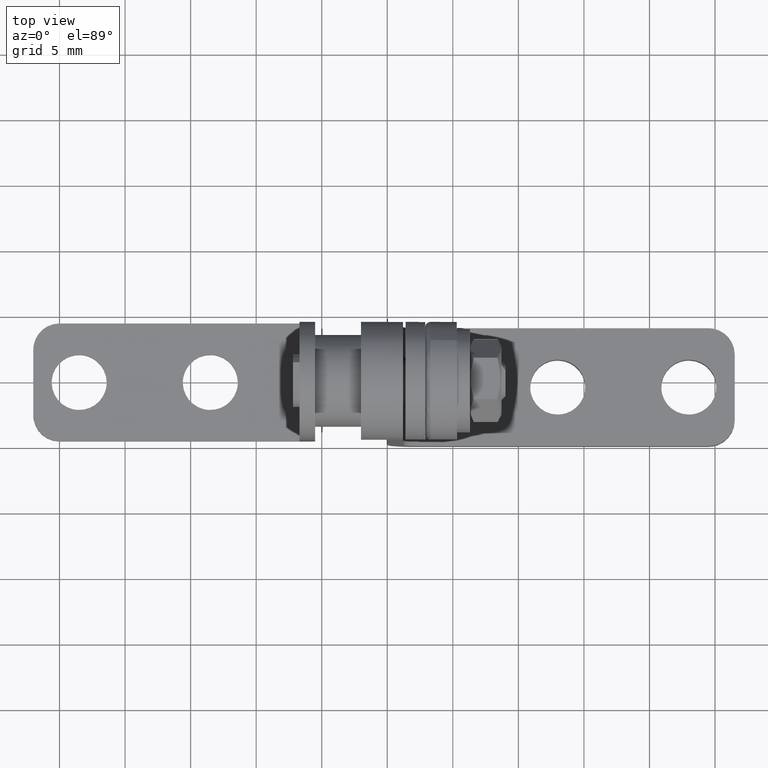
[diagram: clean part render]
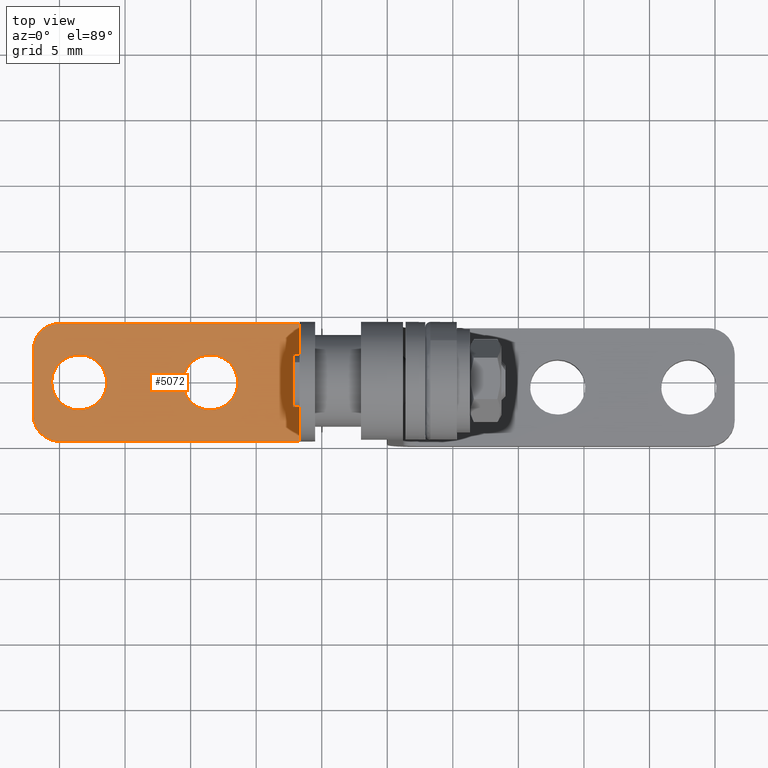
[diagram: same view with one face highlighted and labeled with its STEP entity id]
A machine part, top view. The second image highlights one B-rep face of the part: STEP entity #5072.
In plain terms, the highlighted face is a freeform B-spline surface patch.
Its self-contained STEP definition (entity closure, byte-faithful):
#4265=CARTESIAN_POINT('',(-23.628201933141490,-2.096083076695368,-6.799999999988930));
#4266=VERTEX_POINT('',#4265);
#4267=CARTESIAN_POINT('',(-21.399999999999999,-1.668354E-011,-6.799999999988930));
#4268=VERTEX_POINT('',#4267);
#4269=CARTESIAN_POINT('',(-23.628201933141487,-2.096083076695370,-6.799999999988931));
#4270=CARTESIAN_POINT('',(-23.564160802986347,-2.100000000016684,-6.799999999988931));
#4271=CARTESIAN_POINT('',(-23.500000000000000,-2.100000000016684,-6.799999999988930));
#4272=CARTESIAN_POINT('',(-21.400000000000002,-2.100000000016684,-6.799999999988931));
#4273=CARTESIAN_POINT('',(-21.399999999999999,-1.668354E-011,-6.799999999988930));
#4281=(BOUNDED_CURVE()B_SPLINE_CURVE(2,(#4269,#4270,#4271,#4272,#4273),.UNSPECIFIED.,.F.,.U.)B_SPLINE_CURVE_WITH_KNOTS((3,2,3),(0.239332962232231,0.250000000000000,0.500000000000000),.UNSPECIFIED.)CURVE()GEOMETRIC_REPRESENTATION_ITEM()RATIONAL_B_SPLINE_CURVE((0.976072041652333,0.987502787891974,1.0,0.707106781186548,1.0))REPRESENTATION_ITEM(''));
#4282=EDGE_CURVE('',#4266,#4268,#4281,.T.);
#4284=CARTESIAN_POINT('',(-23.371798066858510,2.096083076662002,-6.799999999988930));
#4285=VERTEX_POINT('',#4284);
#4286=CARTESIAN_POINT('',(-21.399999999999999,-1.668354E-011,-6.799999999988930));
#4287=CARTESIAN_POINT('',(-21.399999999999999,1.975482740373582,-6.799999999988931));
#4288=CARTESIAN_POINT('',(-23.371798066858506,2.096083076662002,-6.799999999988930));
#4296=(BOUNDED_CURVE()B_SPLINE_CURVE(2,(#4286,#4287,#4288),.UNSPECIFIED.,.F.,.U.)B_SPLINE_CURVE_WITH_KNOTS((3,3),(0.500000000000000,0.739332962232231),.UNSPECIFIED.)CURVE()GEOMETRIC_REPRESENTATION_ITEM()RATIONAL_B_SPLINE_CURVE((1.0,0.719603993294574,0.976072041652332))REPRESENTATION_ITEM(''));
#4297=EDGE_CURVE('',#4268,#4285,#4296,.T.);
#4364=CARTESIAN_POINT('',(-25.600000000000001,-1.668354E-011,-6.799999999988930));
#4365=VERTEX_POINT('',#4364);
#4366=CARTESIAN_POINT('',(-25.600000000000001,-1.668354E-011,-6.799999999988930));
#4367=CARTESIAN_POINT('',(-25.600000000000001,-1.975482740406947,-6.799999999988931));
#4368=CARTESIAN_POINT('',(-23.628201933141494,-2.096083076695369,-6.799999999988930));
#4376=(BOUNDED_CURVE()B_SPLINE_CURVE(2,(#4366,#4367,#4368),.UNSPECIFIED.,.F.,.U.)B_SPLINE_CURVE_WITH_KNOTS((3,3),(0.0,0.239332962232231),.UNSPECIFIED.)CURVE()GEOMETRIC_REPRESENTATION_ITEM()RATIONAL_B_SPLINE_CURVE((1.0,0.719603993294574,0.976072041652332))REPRESENTATION_ITEM(''));
#4377=EDGE_CURVE('',#4365,#4266,#4376,.T.);
#4411=CARTESIAN_POINT('',(-23.371798066858513,2.096083076662002,-6.799999999988931));
#4412=CARTESIAN_POINT('',(-23.435839197013657,2.099999999983317,-6.799999999988930));
#4413=CARTESIAN_POINT('',(-23.500000000000000,2.099999999983316,-6.799999999988930));
#4414=CARTESIAN_POINT('',(-25.600000000000001,2.099999999983317,-6.799999999988931));
#4415=CARTESIAN_POINT('',(-25.600000000000001,-1.668354E-011,-6.799999999988930));
#4423=(BOUNDED_CURVE()B_SPLINE_CURVE(2,(#4411,#4412,#4413,#4414,#4415),.UNSPECIFIED.,.F.,.U.)B_SPLINE_CURVE_WITH_KNOTS((3,2,3),(0.739332962232231,0.750000000000000,1.0),.UNSPECIFIED.)CURVE()GEOMETRIC_REPRESENTATION_ITEM()RATIONAL_B_SPLINE_CURVE((0.976072041652333,0.987502787891974,1.0,0.707106781186548,1.0))REPRESENTATION_ITEM(''));
#4424=EDGE_CURVE('',#4285,#4365,#4423,.T.);
#4447=CARTESIAN_POINT('',(-13.628201933141350,-2.096083076695369,-6.799999999988930));
#4448=VERTEX_POINT('',#4447);
#4449=CARTESIAN_POINT('',(-11.399999999999860,-1.668354E-011,-6.799999999988930));
#4450=VERTEX_POINT('',#4449);
#4451=CARTESIAN_POINT('',(-13.628201933141355,-2.096083076695370,-6.799999999988931));
#4452=CARTESIAN_POINT('',(-13.564160802986214,-2.100000000016684,-6.799999999988931));
#4453=CARTESIAN_POINT('',(-13.499999999999860,-2.100000000016684,-6.799999999988930));
#4454=CARTESIAN_POINT('',(-11.399999999999864,-2.100000000016684,-6.799999999988931));
#4455=CARTESIAN_POINT('',(-11.399999999999860,-1.668354E-011,-6.799999999988930));
#4463=(BOUNDED_CURVE()B_SPLINE_CURVE(2,(#4451,#4452,#4453,#4454,#4455),.UNSPECIFIED.,.F.,.U.)B_SPLINE_CURVE_WITH_KNOTS((3,2,3),(0.239332962232231,0.250000000000000,0.500000000000000),.UNSPECIFIED.)CURVE()GEOMETRIC_REPRESENTATION_ITEM()RATIONAL_B_SPLINE_CURVE((0.976072041652333,0.987502787891974,1.0,0.707106781186548,1.0))REPRESENTATION_ITEM(''));
#4464=EDGE_CURVE('',#4448,#4450,#4463,.T.);
#4466=CARTESIAN_POINT('',(-13.371798066858370,2.096083076662001,-6.799999999988930));
#4467=VERTEX_POINT('',#4466);
#4468=CARTESIAN_POINT('',(-11.399999999999860,-1.668354E-011,-6.799999999988930));
#4469=CARTESIAN_POINT('',(-11.399999999999862,1.975482740373582,-6.799999999988931));
#4470=CARTESIAN_POINT('',(-13.371798066858370,2.096083076662002,-6.799999999988930));
#4478=(BOUNDED_CURVE()B_SPLINE_CURVE(2,(#4468,#4469,#4470),.UNSPECIFIED.,.F.,.U.)B_SPLINE_CURVE_WITH_KNOTS((3,3),(0.500000000000000,0.739332962232231),.UNSPECIFIED.)CURVE()GEOMETRIC_REPRESENTATION_ITEM()RATIONAL_B_SPLINE_CURVE((1.0,0.719603993294574,0.976072041652332))REPRESENTATION_ITEM(''));
#4479=EDGE_CURVE('',#4450,#4467,#4478,.T.);
#4546=CARTESIAN_POINT('',(-15.599999999999859,-1.668354E-011,-6.799999999988930));
#4547=VERTEX_POINT('',#4546);
#4548=CARTESIAN_POINT('',(-15.599999999999859,-1.668354E-011,-6.799999999988930));
#4549=CARTESIAN_POINT('',(-15.599999999999859,-1.975482740406951,-6.799999999988930));
#4550=CARTESIAN_POINT('',(-13.628201933141346,-2.096083076695370,-6.799999999988930));
#4558=(BOUNDED_CURVE()B_SPLINE_CURVE(2,(#4548,#4549,#4550),.UNSPECIFIED.,.F.,.U.)B_SPLINE_CURVE_WITH_KNOTS((3,3),(0.0,0.239332962232231),.UNSPECIFIED.)CURVE()GEOMETRIC_REPRESENTATION_ITEM()RATIONAL_B_SPLINE_CURVE((1.0,0.719603993294574,0.976072041652333))REPRESENTATION_ITEM(''));
#4559=EDGE_CURVE('',#4547,#4448,#4558,.T.);
#4593=CARTESIAN_POINT('',(-13.371798066858370,2.096083076662002,-6.799999999988930));
#4594=CARTESIAN_POINT('',(-13.435839197013513,2.099999999983316,-6.799999999988930));
#4595=CARTESIAN_POINT('',(-13.499999999999860,2.099999999983316,-6.799999999988930));
#4596=CARTESIAN_POINT('',(-15.599999999999856,2.099999999983317,-6.799999999988931));
#4597=CARTESIAN_POINT('',(-15.599999999999859,-1.668354E-011,-6.799999999988930));
#4605=(BOUNDED_CURVE()B_SPLINE_CURVE(2,(#4593,#4594,#4595,#4596,#4597),.UNSPECIFIED.,.F.,.U.)B_SPLINE_CURVE_WITH_KNOTS((3,2,3),(0.739332962232231,0.750000000000000,1.0),.UNSPECIFIED.)CURVE()GEOMETRIC_REPRESENTATION_ITEM()RATIONAL_B_SPLINE_CURVE((0.976072041652332,0.987502787891974,1.0,0.707106781186548,1.0))REPRESENTATION_ITEM(''));
#4606=EDGE_CURVE('',#4467,#4547,#4605,.T.);
#4625=CARTESIAN_POINT('',(-27.0,-2.500000000000145,-6.799999999999099));
#4626=VERTEX_POINT('',#4625);
#4632=CARTESIAN_POINT('',(-27.0,2.500000000000000,-6.799999999999110));
#4633=VERTEX_POINT('',#4632);
#4634=CARTESIAN_POINT('',(-27.0,2.500000000000000,-6.799999999999110));
#4635=CARTESIAN_POINT('',(-27.0,-2.500000000000145,-6.799999999999099));
#4636=QUASI_UNIFORM_CURVE('',1,(#4634,#4635),.UNSPECIFIED.,.F.,.U.);
#4637=EDGE_CURVE('',#4633,#4626,#4636,.T.);
#4652=CARTESIAN_POINT('',(-6.699999999999861,4.500000000000000,-6.799999999999110));
#4653=VERTEX_POINT('',#4652);
#4654=CARTESIAN_POINT('',(-6.699999999999861,-4.500000000000150,-6.799999999999099));
#4655=VERTEX_POINT('',#4654);
#4656=CARTESIAN_POINT('',(-6.699999999999861,4.500000000000000,-6.799999999999110));
#4657=CARTESIAN_POINT('',(-6.699999999999861,-4.500000000000150,-6.799999999999099));
#4658=QUASI_UNIFORM_CURVE('',1,(#4656,#4657),.UNSPECIFIED.,.F.,.U.);
#4659=EDGE_CURVE('',#4653,#4655,#4658,.T.);
#4947=CARTESIAN_POINT('',(-25.0,4.500000000000000,-6.799999999999110));
#4948=VERTEX_POINT('',#4947);
#4949=CARTESIAN_POINT('',(-25.0,4.500000000000001,-6.799999999999110));
#4950=CARTESIAN_POINT('',(-27.000000000000011,4.500000000000002,-6.799999999999109));
#4951=CARTESIAN_POINT('',(-27.0,2.500000000000000,-6.799999999999110));
#4959=(BOUNDED_CURVE()B_SPLINE_CURVE(2,(#4949,#4950,#4951),.UNSPECIFIED.,.F.,.U.)CURVE()GEOMETRIC_REPRESENTATION_ITEM()QUASI_UNIFORM_CURVE()RATIONAL_B_SPLINE_CURVE((1.0,0.707106781186548,1.0))REPRESENTATION_ITEM(''));
#4960=EDGE_CURVE('',#4948,#4633,#4959,.T.);
#5015=CARTESIAN_POINT('',(-25.0,-4.500000000000150,-6.799999999999099));
#5016=VERTEX_POINT('',#5015);
#5022=CARTESIAN_POINT('',(-27.0,-2.500000000000145,-6.799999999999099));
#5023=CARTESIAN_POINT('',(-27.000006541939470,-2.614535294356180,-6.799999999999099));
#5024=CARTESIAN_POINT('',(-26.978160182375550,-2.868149457004871,-6.799999999999109));
#5025=CARTESIAN_POINT('',(-26.854892145256830,-3.303477375467346,-6.799999999999077));
#5026=CARTESIAN_POINT('',(-26.625851993356960,-3.696444935937451,-6.799999999999136));
#5027=CARTESIAN_POINT('',(-26.303056609441970,-4.035411567379095,-6.799999999999090));
#5028=CARTESIAN_POINT('',(-25.951382654789001,-4.279908098460294,-6.799999999999102));
#5029=CARTESIAN_POINT('',(-25.499030398957110,-4.457568896924603,-6.799999999999120));
#5030=CARTESIAN_POINT('',(-25.171810036993300,-4.500051682902618,-6.799999999999081));
#5031=CARTESIAN_POINT('',(-25.0,-4.500000000000150,-6.799999999999099));
#5032=B_SPLINE_CURVE_WITH_KNOTS('',3,(#5022,#5023,#5024,#5025,#5026,#5027,#5028,#5029,#5030,#5031),.UNSPECIFIED.,.F.,.U.,(4,1,1,1,1,1,1,4),(0.000000065933264,0.343608930906456,0.760858932076428,1.349924799903241,1.693521759855404,2.159856886887026,2.626196747654976,3.141612365755480),.UNSPECIFIED.);
#5033=EDGE_CURVE('',#4626,#5016,#5032,.T.);
#5039=CARTESIAN_POINT('',(-28.013984960654671,4.949549982556260,-6.799999999999110));
#5040=CARTESIAN_POINT('',(-28.013984960654671,-4.949550223955225,-6.799999999999110));
#5041=CARTESIAN_POINT('',(-5.686014494856763,4.949549982556260,-6.799999999999110));
#5042=CARTESIAN_POINT('',(-5.686014494856763,-4.949550223955225,-6.799999999999110));
#5043=B_SPLINE_SURFACE_WITH_KNOTS('',1,1,((#5039,#5041),(#5040,#5042)),.UNSPECIFIED.,.F.,.F.,.U.,(2,2),(2,2),(0.0,9.899100206511484),(0.0,22.327970465797900),.UNSPECIFIED.);
#5044=ORIENTED_EDGE('',*,*,#4637,.T.);
#5045=ORIENTED_EDGE('',*,*,#5033,.T.);
#5046=CARTESIAN_POINT('',(-25.0,-4.500000000000150,-6.799999999999099));
#5047=CARTESIAN_POINT('',(-6.699999999999861,-4.500000000000150,-6.799999999999099));
#5048=QUASI_UNIFORM_CURVE('',1,(#5046,#5047),.UNSPECIFIED.,.F.,.U.);
#5049=EDGE_CURVE('',#5016,#4655,#5048,.T.);
#5050=ORIENTED_EDGE('',*,*,#5049,.T.);
#5051=ORIENTED_EDGE('',*,*,#4659,.F.);
#5052=CARTESIAN_POINT('',(-25.0,4.500000000000000,-6.799999999999110));
#5053=CARTESIAN_POINT('',(-6.699999999999861,4.500000000000000,-6.799999999999110));
#5054=QUASI_UNIFORM_CURVE('',1,(#5052,#5053),.UNSPECIFIED.,.F.,.U.);
#5055=EDGE_CURVE('',#4948,#4653,#5054,.T.);
#5056=ORIENTED_EDGE('',*,*,#5055,.F.);
#5057=ORIENTED_EDGE('',*,*,#4960,.T.);
#5058=EDGE_LOOP('',(#5044,#5045,#5050,#5051,#5056,#5057));
#5059=FACE_OUTER_BOUND('',#5058,.T.);
#5060=ORIENTED_EDGE('',*,*,#4479,.F.);
#5061=ORIENTED_EDGE('',*,*,#4464,.F.);
#5062=ORIENTED_EDGE('',*,*,#4559,.F.);
#5063=ORIENTED_EDGE('',*,*,#4606,.F.);
#5064=EDGE_LOOP('',(#5060,#5061,#5062,#5063));
#5065=FACE_BOUND('',#5064,.T.);
#5066=ORIENTED_EDGE('',*,*,#4297,.F.);
#5067=ORIENTED_EDGE('',*,*,#4282,.F.);
#5068=ORIENTED_EDGE('',*,*,#4377,.F.);
#5069=ORIENTED_EDGE('',*,*,#4424,.F.);
#5070=EDGE_LOOP('',(#5066,#5067,#5068,#5069));
#5071=FACE_BOUND('',#5070,.T.);
#5072=ADVANCED_FACE('',(#5059,#5065,#5071),#5043,.T.);